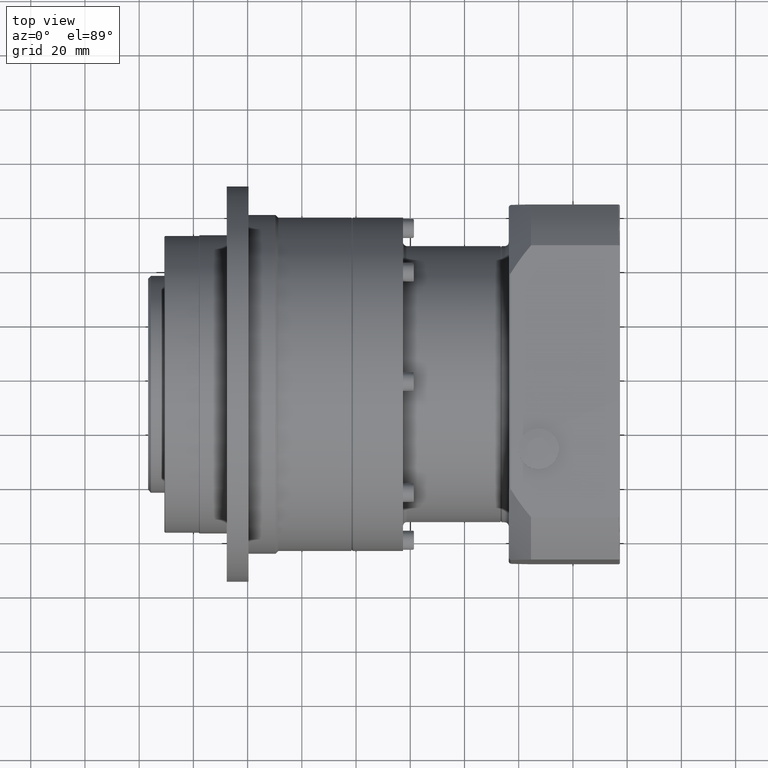
[diagram: clean part render]
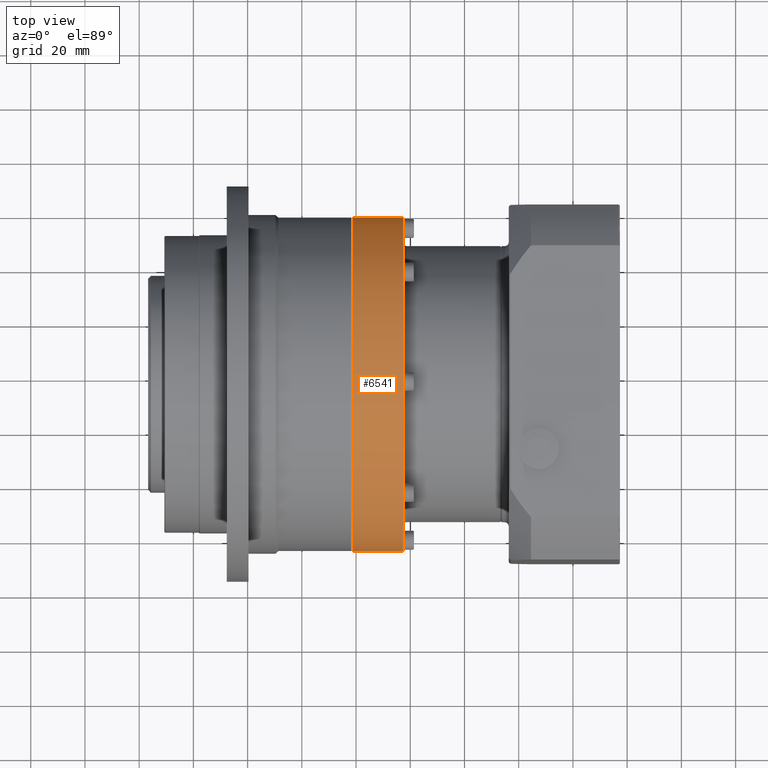
[diagram: same view with one face highlighted and labeled with its STEP entity id]
A machine part, top view. The second image highlights one B-rep face of the part: STEP entity #6541.
In plain terms, the highlighted cylindrical surface (bore or boss wall) has radius 61.5 mm, axis along (1, 0, 0).
Its self-contained STEP definition (entity closure, byte-faithful):
#1158=FACE_BOUND('',#2149,.T.);
#1569=FACE_OUTER_BOUND('',#2148,.T.);
#2148=EDGE_LOOP('',(#5069));
#2149=EDGE_LOOP('',(#5070));
#2761=CIRCLE('',#7191,61.5);
#2768=CIRCLE('',#7200,61.5);
#3257=VERTEX_POINT('',#10656);
#3264=VERTEX_POINT('',#10672);
#3948=EDGE_CURVE('',#3257,#3257,#2761,.T.);
#3955=EDGE_CURVE('',#3264,#3264,#2768,.T.);
#5069=ORIENTED_EDGE('',*,*,#3948,.F.);
#5070=ORIENTED_EDGE('',*,*,#3955,.F.);
#5894=CYLINDRICAL_SURFACE('',#7201,61.5);
#6541=ADVANCED_FACE('',(#1569,#1158),#5894,.T.);
#7191=AXIS2_PLACEMENT_3D('',#10657,#8546,#8547);
#7200=AXIS2_PLACEMENT_3D('',#10673,#8564,#8565);
#7201=AXIS2_PLACEMENT_3D('',#10674,#8566,#8567);
#8546=DIRECTION('center_axis',(1.,1.7280174216235E-15,1.07569171073903E-14));
#8547=DIRECTION('ref_axis',(1.07569171075113E-14,-7.00101057679283E-11,
-1.));
#8564=DIRECTION('center_axis',(-1.,-1.7280174216235E-15,-1.07569171073903E-14));
#8565=DIRECTION('ref_axis',(1.72801742087041E-15,-1.,7.00101057679283E-11));
#8566=DIRECTION('center_axis',(1.,1.7280174216235E-15,1.07569171073903E-14));
#8567=DIRECTION('ref_axis',(-1.72801742087041E-15,1.,-7.00101057679283E-11));
#10656=CARTESIAN_POINT('',(-2.69162748380704,-21.0168586315028,73.4991007369567));
#10657=CARTESIAN_POINT('Origin',(-2.69162748380694,-82.5168586315028,73.4991007412623));
#10672=CARTESIAN_POINT('',(-21.191627483807,-21.0168586315028,73.4991007369565));
#10673=CARTESIAN_POINT('Origin',(-21.1916274838069,-82.5168586315028,73.4991007412621));
#10674=CARTESIAN_POINT('Origin',(-12.1916274838069,-82.5168586315028,73.4991007412622));